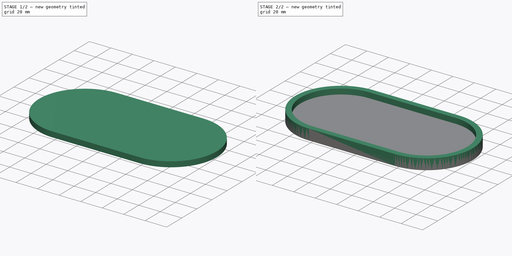
[diagram: build sequence overview — one tinted view per stage of 2, left to right]
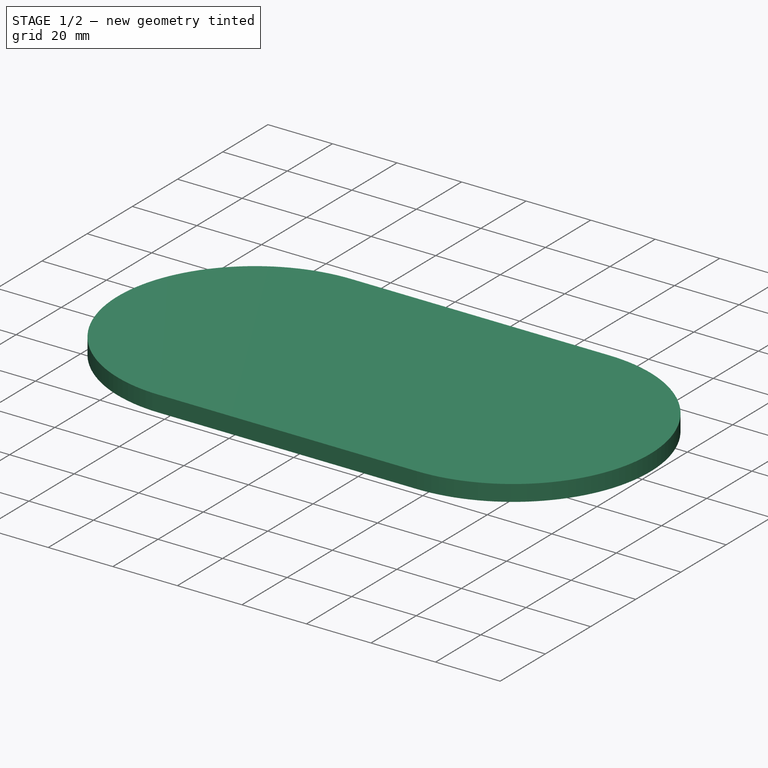
[diagram: stage 1 of 2 — iso view after this stage's code; geometry added in this stage tinted green]
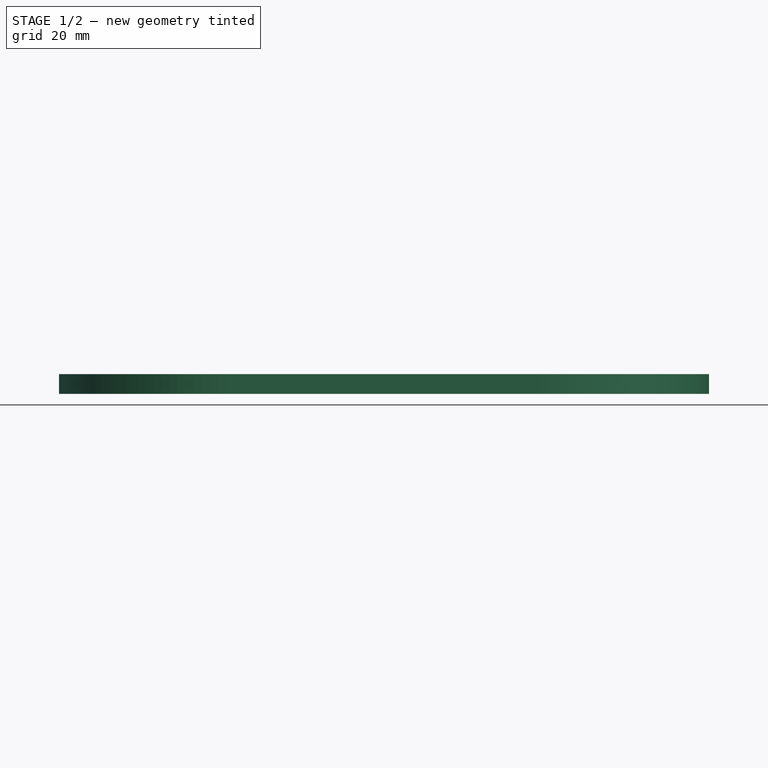
[diagram: stage 1 of 2 — front view after this stage's code; geometry added in this stage tinted green]
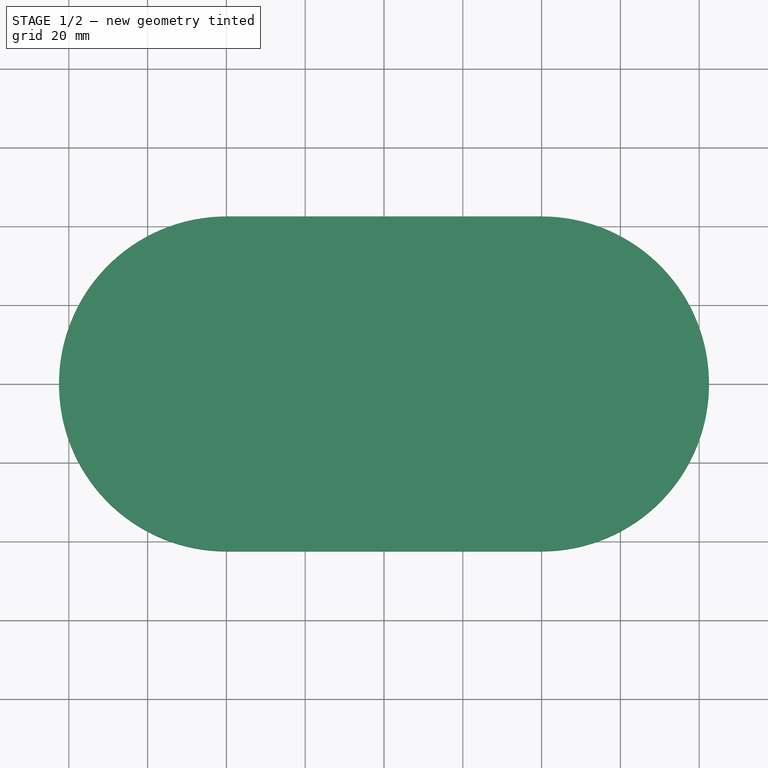
[diagram: stage 1 of 2 — top view after this stage's code; geometry added in this stage tinted green]
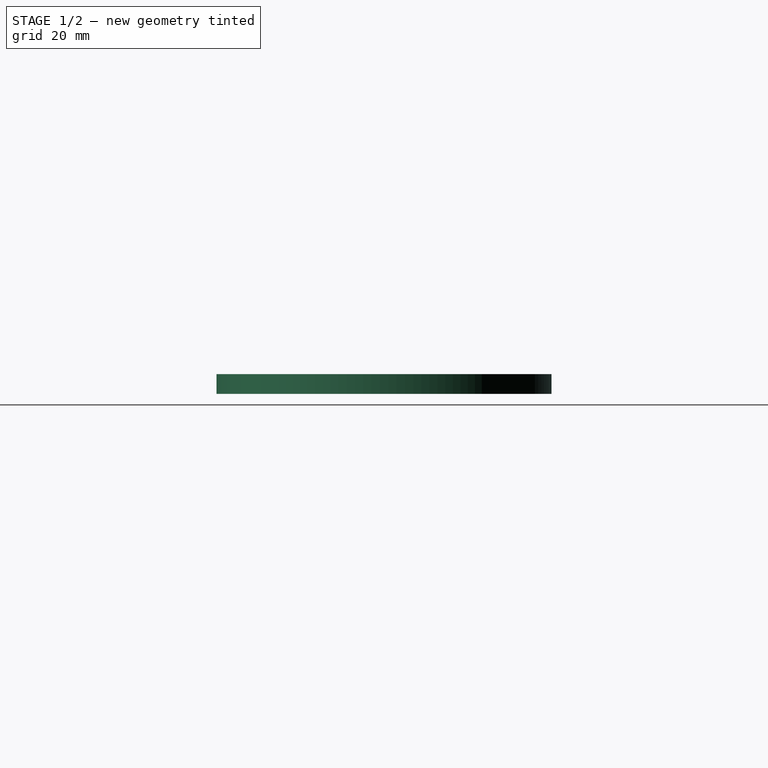
[diagram: stage 1 of 2 — right view after this stage's code; geometry added in this stage tinted green]
FCSTD DOCUMENT  (FreeCAD 1.0R39109 (Git))
Label: Brillenparkplatz
License: All rights reserved
LicenseURL: http://en.wikipedia.org/wiki/All_rights_reserved
objects: Sketcher::SketchObject×2, PartDesign::Pad×2, PartDesign::Body×2
note: 12 computed .brp shape members not serialized (recipe doc carries the construction recipe); baked Part::Feature solids carry a one-line shape summary decoded from their .brp

FEATURE [PartDesign::Body] Body  label="Körper"
  AllowCompound = false
  Group = -> [Sketch,Pad]
  Origin = -> Origin
  Tip = -> Pad
FEATURE [Sketcher::SketchObject] Sketch001
  ArcFitTolerance = 1e-06
  AttachmentSupport = -> [XY_Plane001]
  FullyConstrained = true
  MakeInternals = false
  MapMode = 5
  sketch-geometry (4):
    g0: ArcOfCircle CenterX=-40 CenterY=0 CenterZ=0 NormalX=0 NormalY=0 NormalZ=1 AngleXU=0 Radius=42.5 StartAngle=1.5708 EndAngle=4.71239
    g1: ArcOfCircle CenterX=40 CenterY=0 CenterZ=0 NormalX=0 NormalY=0 NormalZ=1 AngleXU=0 Radius=42.5 StartAngle=4.71239 EndAngle=7.85398
    g2: LineSegment StartX=-40 StartY=42.5 StartZ=0 EndX=40 EndY=42.5 EndZ=0
    g3: LineSegment StartX=-39.9999 StartY=-42.5 StartZ=0 EndX=40 EndY=-42.5 EndZ=0
  constraints (12):
    c: PointOnObject(g0,g-1)
    c: Diameter(g0) = 85
    c: Equal(g1,g0)
    c: Horizontal(g2)
    c: DistanceX(g2,g2) = 80
    c: Tangent(g0,g2) = 1.5708
    c: Coincident(g1,g2)
    c: Tangent(g1,g3) = -1.5708
    c: Coincident(g0,g3)
    c: Symmetric(g0,g1,g-1)
    c: Diameter(g1) = 85
    c: Horizontal(g3)
FEATURE [PartDesign::Pad] Pad001
  Direction = (0,0,1)
  Length = 5
  Length2 = 10
  Profile = -> Sketch001
  ReferenceAxis = -> Sketch001 [N_Axis]
  Refine = true
  Suppressed = false
  Type = 0
FEATURE [PartDesign::Body] Body001  label="Körper001"
  AllowCompound = false
  Group = -> [Sketch001,Pad001]
  Origin = -> Origin001
  Tip = -> Pad001
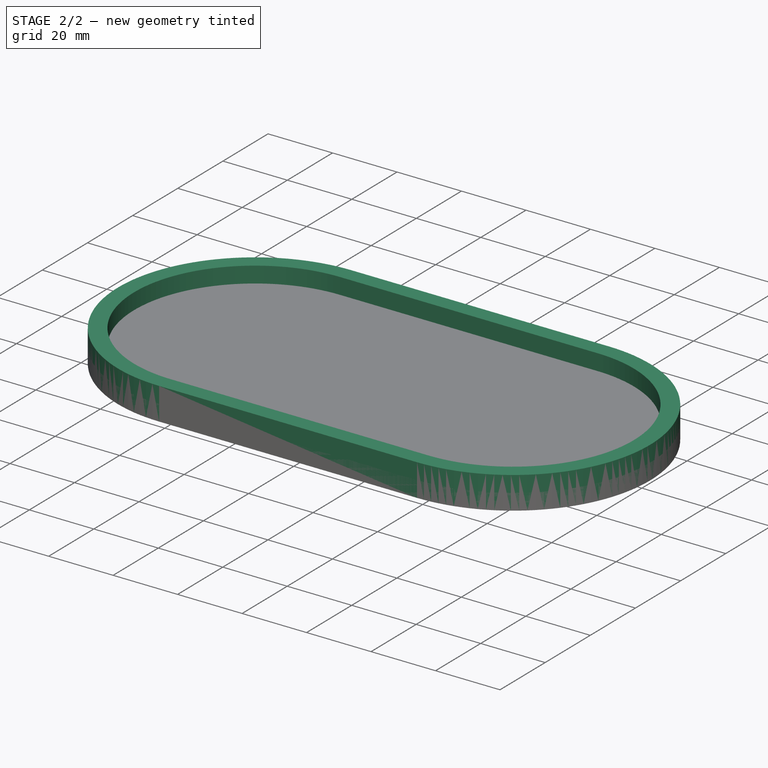
[diagram: stage 2 of 2 — iso view after this stage's code; geometry added in this stage tinted green]
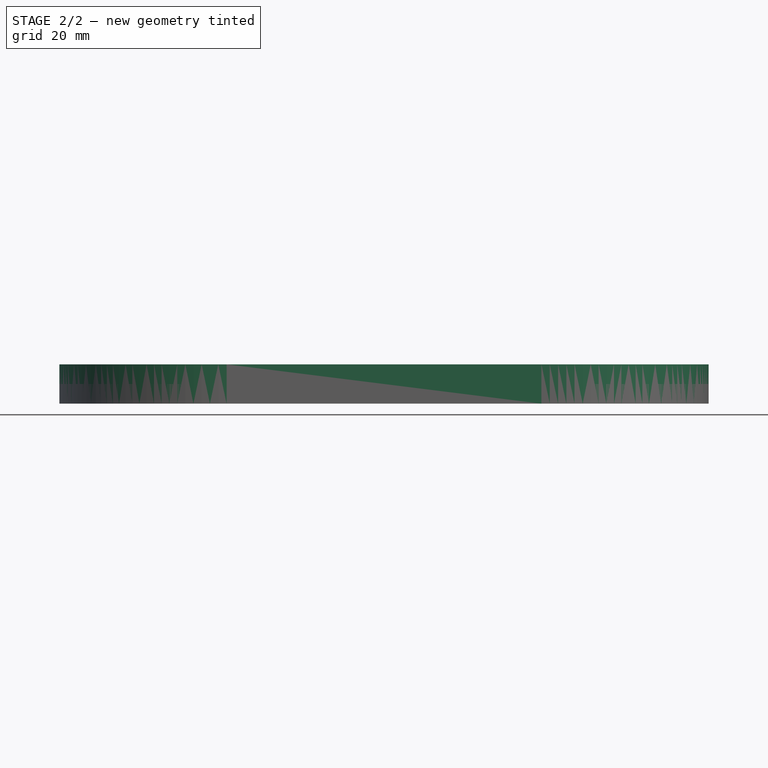
[diagram: stage 2 of 2 — front view after this stage's code; geometry added in this stage tinted green]
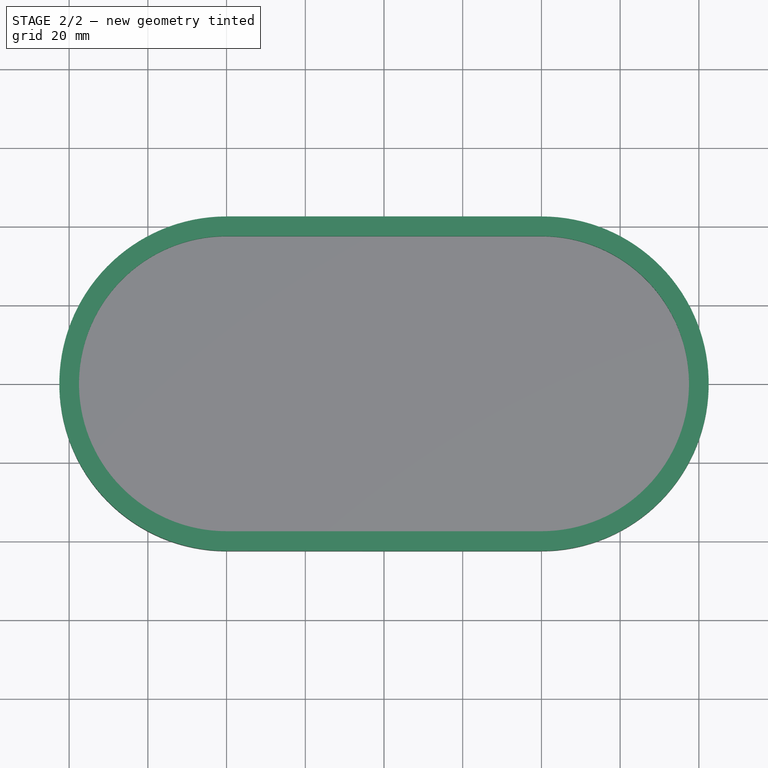
[diagram: stage 2 of 2 — top view after this stage's code; geometry added in this stage tinted green]
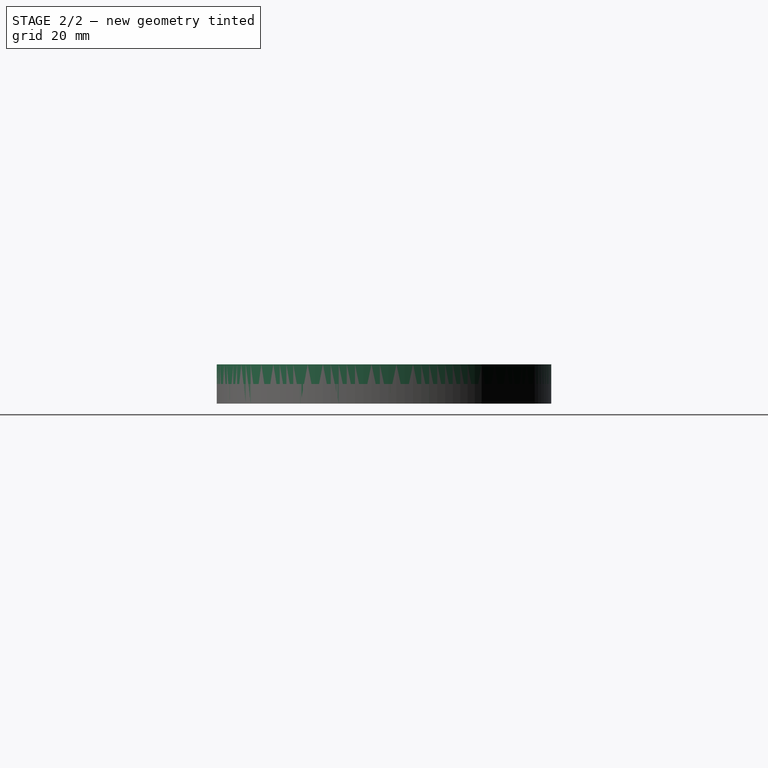
[diagram: stage 2 of 2 — right view after this stage's code; geometry added in this stage tinted green]
FEATURE [Sketcher::SketchObject] Sketch
  ArcFitTolerance = 1e-06
  AttachmentSupport = -> [XY_Plane]
  FullyConstrained = true
  MakeInternals = false
  MapMode = 5
  sketch-geometry (8):
    g0: ArcOfCircle CenterX=-40 CenterY=0 CenterZ=0 NormalX=0 NormalY=0 NormalZ=1 AngleXU=0 Radius=42.5 StartAngle=1.5708 EndAngle=4.71239
    g1: ArcOfCircle CenterX=40 CenterY=0 CenterZ=0 NormalX=0 NormalY=0 NormalZ=1 AngleXU=0 Radius=42.5 StartAngle=4.71239 EndAngle=7.85398
    g2: LineSegment StartX=-40 StartY=42.5 StartZ=0 EndX=40 EndY=42.5 EndZ=0
    g3: LineSegment StartX=-40 StartY=-42.5 StartZ=0 EndX=40 EndY=-42.5 EndZ=0
    g4: ArcOfCircle CenterX=-40 CenterY=0 CenterZ=0 NormalX=0 NormalY=0 NormalZ=1 AngleXU=0 Radius=37.5 StartAngle=1.5708 EndAngle=4.71239
    g5: ArcOfCircle CenterX=40 CenterY=0 CenterZ=0 NormalX=0 NormalY=0 NormalZ=1 AngleXU=0 Radius=37.5 StartAngle=4.71239 EndAngle=7.85398
    g6: LineSegment StartX=-40 StartY=37.5 StartZ=0 EndX=40 EndY=37.5 EndZ=0
    g7: LineSegment StartX=40 StartY=-37.5 StartZ=0 EndX=-40 EndY=-37.5 EndZ=0
  constraints (22):
    c: PointOnObject(g0,g-1)
    c: Diameter(g0) = 85
    c: Equal(g1,g0)
    c: Horizontal(g2)
    c: Horizontal(g3)
    c: DistanceX(g2,g2) = 80
    c: Tangent(g0,g2) = 1.5708
    c: Coincident(g1,g2)
    c: Tangent(g1,g3) = -1.5708
    c: Coincident(g0,g3)
    c: Symmetric(g0,g1,g-1)
    c: Coincident(g5,g1)
    c: Coincident(g4,g0)
    c: Horizontal(g6)
    c: Horizontal(g7)
    c: Equal(g7,g6)
    c: Tangent(g4,g7) = 1.5708
    c: Coincident(g4,g6)
    c: Tangent(g5,g6) = 1.5708
    c: Coincident(g5,g7)
    c: Diameter(g1) = 85
    c: Diameter(g4) = 75
FEATURE [PartDesign::Pad] Pad
  Direction = (0,0,1)
  Length = 10
  Length2 = 10
  Profile = -> Sketch
  ReferenceAxis = -> Sketch [N_Axis]
  Refine = true
  Suppressed = false
  Type = 0
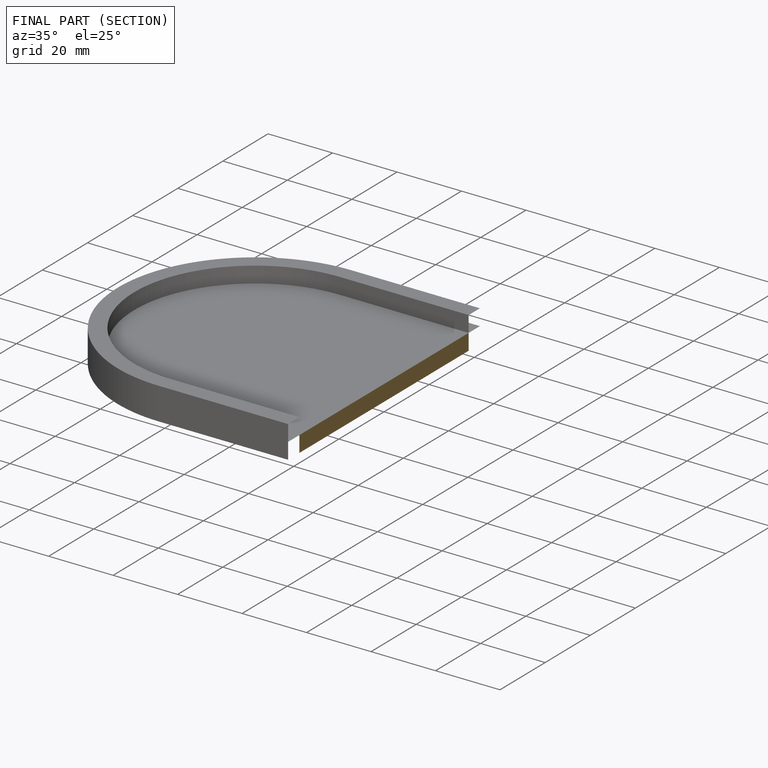
[diagram: finished part — half-section view (interior)]
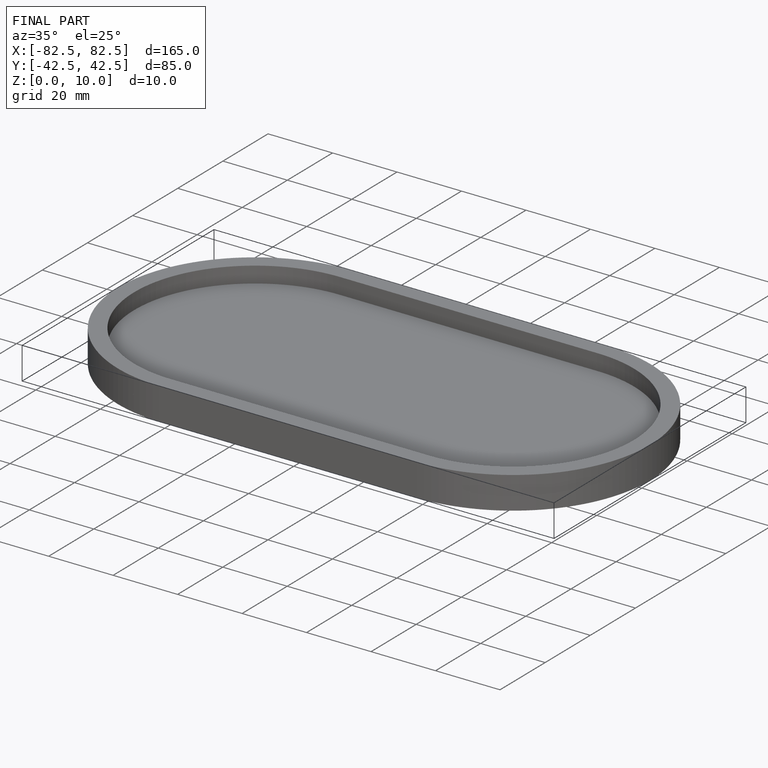
[diagram: finished part — iso view with bounding-box wireframe]
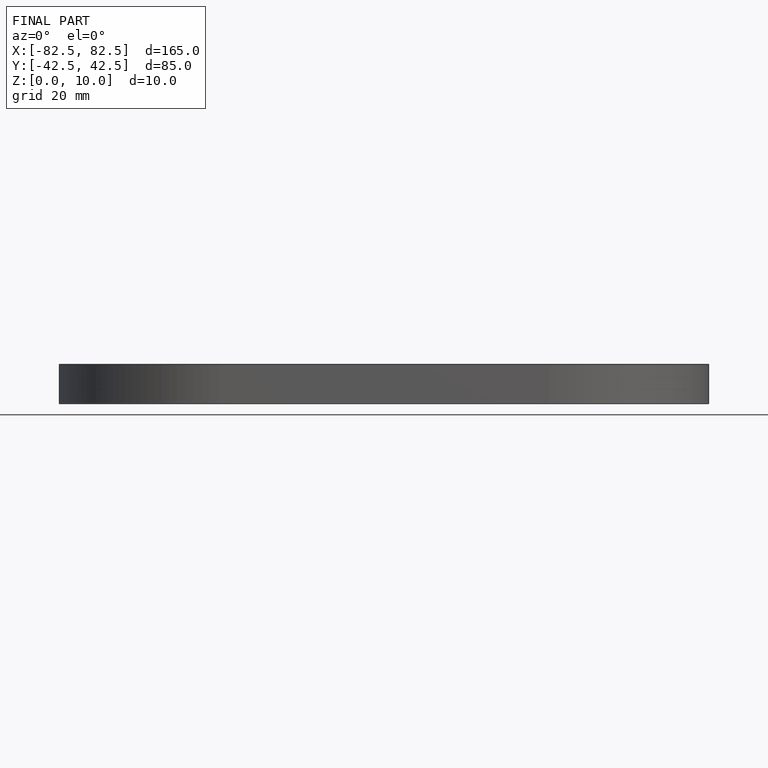
[diagram: finished part — front view with bounding-box wireframe]
